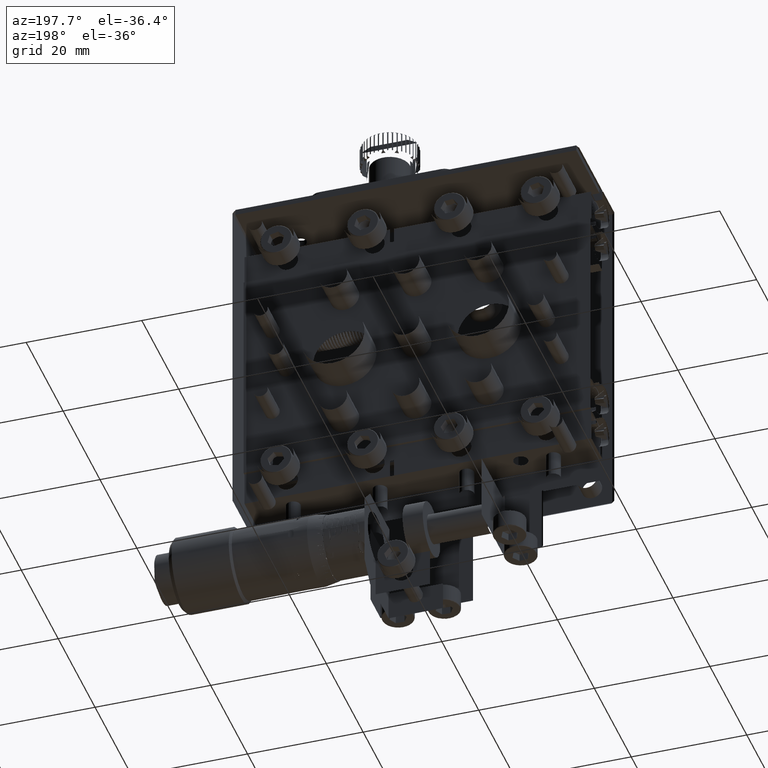
[diagram: clean part render]
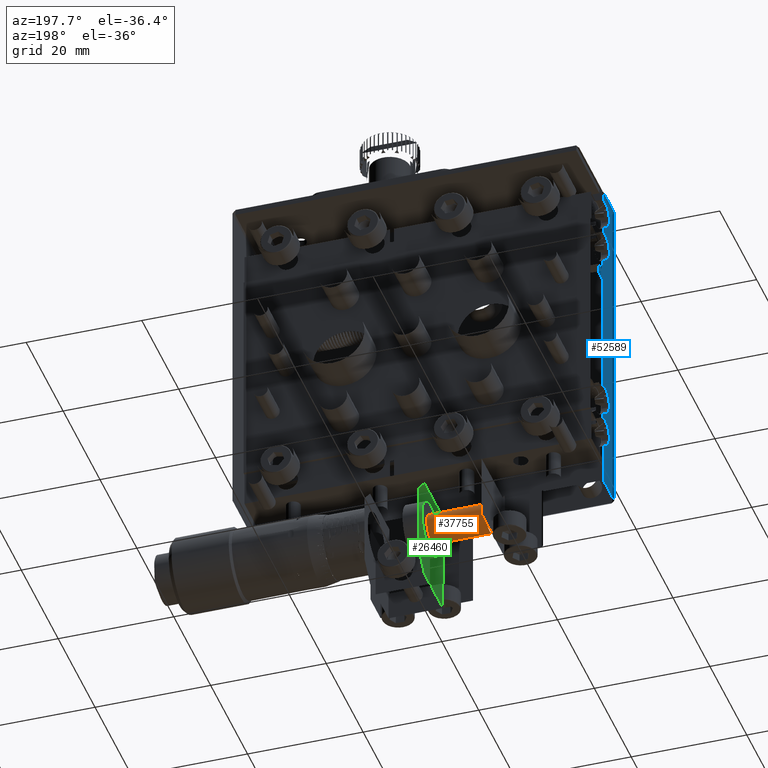
[diagram: same view with three faces highlighted in distinct colors, each labeled with its STEP entity id]
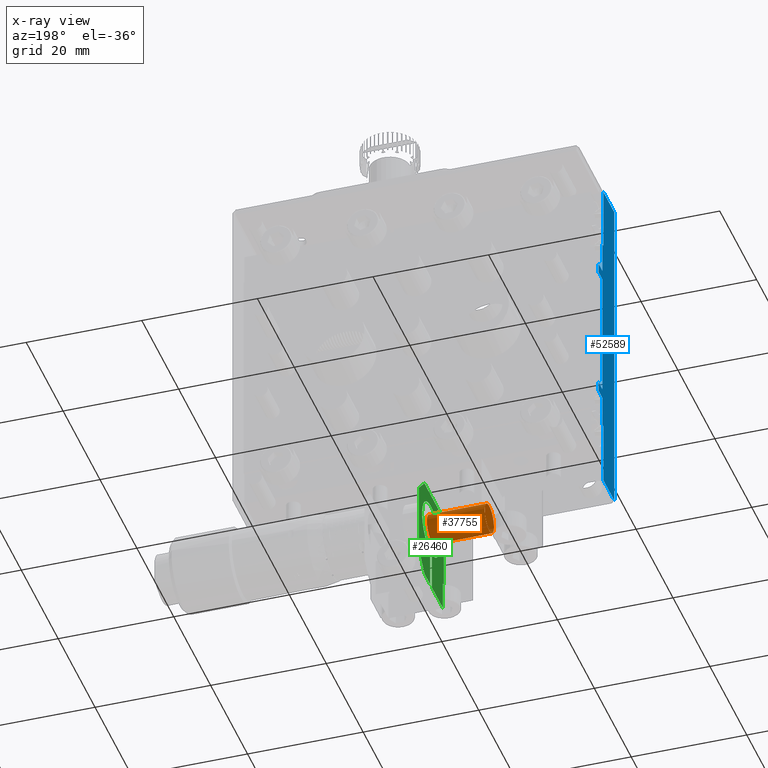
[diagram: x-ray of the same camera — body ghosted, the three highlighted faces saturated]
A machine part, auxiliary view with three faces highlighted in distinct colors.
The next image is the same camera in x-ray (body ghosted, the three faces saturated) — at least one of them is partly hidden behind the body in this view.
Their STEP definitions:

[orange] entity #37755 — the highlighted cylindrical surface (bore or boss wall) has radius 2.5 mm, axis along (1, 0, 0).
#2140 = EDGE_LOOP ( 'NONE', ( #70736 ) ) ;
#3065 = FACE_OUTER_BOUND ( 'NONE', #62259, .T. ) ;
#4983 = DIRECTION ( 'NONE',  ( -1.000000000000000000, -0.000000000000000000, -0.000000000000000000 ) ) ;
#8709 = FACE_OUTER_BOUND ( 'NONE', #2140, .T. ) ;
#12666 = EDGE_CURVE ( 'NONE', #76105, #76105, #24561, .T. ) ;
#13201 = DIRECTION ( 'NONE',  ( 0.000000000000000000, 0.000000000000000000, -1.000000000000000000 ) ) ;
#14354 = VERTEX_POINT ( 'NONE', #20855 ) ;
#16613 = CARTESIAN_POINT ( 'NONE',  ( -12.37249938987502951, 13.00000000000000888, -40.50000087875145738 ) ) ;
#20855 = CARTESIAN_POINT ( 'NONE',  ( -2.350000000000011635, 13.00000000000000888, -40.50000087875145738 ) ) ;
#20869 = CYLINDRICAL_SURFACE ( 'NONE', #76605, 2.500000878751441835 ) ;
#24561 = CIRCLE ( 'NONE', #53636, 2.500000878751441835 ) ;
#29851 = ORIENTED_EDGE ( 'NONE', *, *, #12666, .T. ) ;
#37755 = ADVANCED_FACE ( 'NONE', ( #8709, #3065 ), #20869, .T. ) ;
#47323 = DIRECTION ( 'NONE',  ( 1.000000000000000000, 0.000000000000000000, 0.000000000000000000 ) ) ;
#48300 = EDGE_CURVE ( 'NONE', #14354, #14354, #70465, .T. ) ;
#51050 = AXIS2_PLACEMENT_3D ( 'NONE', #64863, #4983, #13201 ) ;
#52211 = CARTESIAN_POINT ( 'NONE',  ( -12.37249938987502951, 13.00000000000000888, -38.00000000000001421 ) ) ;
#53636 = AXIS2_PLACEMENT_3D ( 'NONE', #52211, #71791, #84829 ) ;
#55151 = DIRECTION ( 'NONE',  ( 0.000000000000000000, 0.000000000000000000, -1.000000000000000000 ) ) ;
#62259 = EDGE_LOOP ( 'NONE', ( #29851 ) ) ;
#64863 = CARTESIAN_POINT ( 'NONE',  ( -2.350000000000011635, 13.00000000000000888, -38.00000000000001421 ) ) ;
#70465 = CIRCLE ( 'NONE', #51050, 2.500000878751441835 ) ;
#70736 = ORIENTED_EDGE ( 'NONE', *, *, #48300, .T. ) ;
#71791 = DIRECTION ( 'NONE',  ( 1.000000000000000000, 0.000000000000000000, 0.000000000000000000 ) ) ;
#76105 = VERTEX_POINT ( 'NONE', #16613 ) ;
#76605 = AXIS2_PLACEMENT_3D ( 'NONE', #80796, #47323, #55151 ) ;
#80796 = CARTESIAN_POINT ( 'NONE',  ( 45.25000000000000000, 13.00000000000000888, -38.00000000000001421 ) ) ;
#84829 = DIRECTION ( 'NONE',  ( 0.000000000000000000, 0.000000000000000000, -1.000000000000000000 ) ) ;

[blue] entity #52589 — the highlighted planar face has unit normal (-1, 0, 0).
#171 = CARTESIAN_POINT ( 'NONE',  ( -30.00000000000000000, 8.999999999999996447, 29.99999999999998579 ) ) ;
#830 = VECTOR ( 'NONE', #8120, 1000.000000000000000 ) ;
#1524 = VERTEX_POINT ( 'NONE', #25277 ) ;
#1936 = VERTEX_POINT ( 'NONE', #25604 ) ;
#2291 = EDGE_LOOP ( 'NONE', ( #3884, #41718, #31880, #57006, #24784, #27845, #44651, #50110, #56962, #43354, #65267, #60798, #77698, #18195, #80019, #20644 ) ) ;
#2313 = VECTOR ( 'NONE', #83941, 1000.000000000000000 ) ;
#2472 = EDGE_CURVE ( 'NONE', #44679, #52233, #78485, .T. ) ;
#3013 = CARTESIAN_POINT ( 'NONE',  ( -30.00000000000000000, 8.999999999999996447, -12.99999999999999822 ) ) ;
#3534 = EDGE_CURVE ( 'NONE', #24541, #63672, #64074, .T. ) ;
#3884 = ORIENTED_EDGE ( 'NONE', *, *, #83804, .F. ) ;
#4846 = LINE ( 'NONE', #32173, #78930 ) ;
#5963 = DIRECTION ( 'NONE',  ( 0.000000000000000000, 1.000000000000000000, -0.000000000000000000 ) ) ;
#6567 = VERTEX_POINT ( 'NONE', #14536 ) ;
#6649 = DIRECTION ( 'NONE',  ( 0.000000000000000000, 6.033820786006283745E-16, -1.000000000000000000 ) ) ;
#8039 = VERTEX_POINT ( 'NONE', #41338 ) ;
#8120 = DIRECTION ( 'NONE',  ( 0.000000000000000000, 1.000000000000000000, -0.000000000000000000 ) ) ;
#8946 = CARTESIAN_POINT ( 'NONE',  ( -30.00000000000000000, 8.999999999999996447, 12.99999999999999645 ) ) ;
#9120 = CARTESIAN_POINT ( 'NONE',  ( -30.00000000000000000, 6.999999999999995559, -12.99999999999999822 ) ) ;
#9610 = CARTESIAN_POINT ( 'NONE',  ( -30.00000000000000000, 6.499999999999997335, -29.49999999999999289 ) ) ;
#10316 = VECTOR ( 'NONE', #5963, 1000.000000000000000 ) ;
#11451 = VERTEX_POINT ( 'NONE', #9610 ) ;
#11479 = CARTESIAN_POINT ( 'NONE',  ( -30.00000000000000000, 6.500000000000002665, -30.00000000000001066 ) ) ;
#11969 = DIRECTION ( 'NONE',  ( 0.000000000000000000, 1.000000000000000000, -0.000000000000000000 ) ) ;
#13208 = VERTEX_POINT ( 'NONE', #74570 ) ;
#13806 = CARTESIAN_POINT ( 'NONE',  ( -30.00000000000000000, 6.999999999999995559, 29.99999999999998579 ) ) ;
#14536 = CARTESIAN_POINT ( 'NONE',  ( -30.00000000000000000, 8.999999999999998224, -12.99999999999999822 ) ) ;
#14694 = EDGE_CURVE ( 'NONE', #26227, #63162, #38695, .T. ) ;
#15080 = CARTESIAN_POINT ( 'NONE',  ( -30.00000000000000000, 8.999999999999996447, -11.25000000000000355 ) ) ;
#15491 = VECTOR ( 'NONE', #21754, 1000.000000000000000 ) ;
#15732 = DIRECTION ( 'NONE',  ( -0.000000000000000000, -0.000000000000000000, -1.000000000000000000 ) ) ;
#16286 = VECTOR ( 'NONE', #33780, 1000.000000000000000 ) ;
#16479 = EDGE_CURVE ( 'NONE', #83164, #59109, #53728, .T. ) ;
#16522 = EDGE_CURVE ( 'NONE', #11451, #13208, #28584, .T. ) ;
#16758 = LINE ( 'NONE', #50581, #66345 ) ;
#17526 = EDGE_CURVE ( 'NONE', #33173, #8039, #4846, .T. ) ;
#18195 = ORIENTED_EDGE ( 'NONE', *, *, #18423, .F. ) ;
#18423 = EDGE_CURVE ( 'NONE', #1524, #11451, #39224, .T. ) ;
#18484 = CARTESIAN_POINT ( 'NONE',  ( -30.00000000000000000, 8.999999999999996447, 18.50000000000000000 ) ) ;
#19716 = CARTESIAN_POINT ( 'NONE',  ( -30.00000000000000000, 6.999999999999996447, 18.50000000000000000 ) ) ;
#20644 = ORIENTED_EDGE ( 'NONE', *, *, #14694, .F. ) ;
#21754 = DIRECTION ( 'NONE',  ( -0.000000000000000000, -0.000000000000000000, -1.000000000000000000 ) ) ;
#21766 = EDGE_CURVE ( 'NONE', #52233, #33173, #28708, .T. ) ;
#22250 = CARTESIAN_POINT ( 'NONE',  ( -30.00000000000000000, 6.999999999999996447, 29.99999999999998579 ) ) ;
#22774 = CARTESIAN_POINT ( 'NONE',  ( -30.00000000000000000, 0.5000000000000119904, 29.50000000000000000 ) ) ;
#24541 = VERTEX_POINT ( 'NONE', #66349 ) ;
#24784 = ORIENTED_EDGE ( 'NONE', *, *, #17526, .F. ) ;
#25277 = CARTESIAN_POINT ( 'NONE',  ( -30.00000000000000000, 6.499999999999995559, -18.50000000000000355 ) ) ;
#25604 = CARTESIAN_POINT ( 'NONE',  ( -30.00000000000000000, 6.999999999999995559, -11.25000000000000178 ) ) ;
#26227 = VERTEX_POINT ( 'NONE', #9120 ) ;
#27845 = ORIENTED_EDGE ( 'NONE', *, *, #21766, .F. ) ;
#28584 = LINE ( 'NONE', #35508, #16286 ) ;
#28708 = LINE ( 'NONE', #41270, #15491 ) ;
#29144 = EDGE_CURVE ( 'NONE', #59109, #24541, #83593, .T. ) ;
#31880 = ORIENTED_EDGE ( 'NONE', *, *, #84319, .F. ) ;
#32173 = CARTESIAN_POINT ( 'NONE',  ( -30.00000000000000000, 8.999999999999996447, 11.25000000000000355 ) ) ;
#33173 = VERTEX_POINT ( 'NONE', #35154 ) ;
#33780 = DIRECTION ( 'NONE',  ( -0.000000000000000000, -1.000000000000000000, 0.000000000000000000 ) ) ;
#35154 = CARTESIAN_POINT ( 'NONE',  ( -30.00000000000000000, 8.999999999999998224, 11.25000000000000178 ) ) ;
#35508 = CARTESIAN_POINT ( 'NONE',  ( -30.00000000000000000, 8.999999999999996447, -29.49999999999998579 ) ) ;
#35565 = DIRECTION ( 'NONE',  ( -0.000000000000000000, -1.000000000000000000, 0.000000000000000000 ) ) ;
#36221 = VERTEX_POINT ( 'NONE', #48174 ) ;
#36606 = VECTOR ( 'NONE', #50112, 1000.000000000000000 ) ;
#38695 = LINE ( 'NONE', #85160, #39934 ) ;
#38802 = VECTOR ( 'NONE', #15732, 1000.000000000000000 ) ;
#39122 = CARTESIAN_POINT ( 'NONE',  ( -30.00000000000000000, 6.999999999999995559, 13.00000000000000000 ) ) ;
#39224 = LINE ( 'NONE', #11479, #60857 ) ;
#39267 = DIRECTION ( 'NONE',  ( -0.000000000000000000, -1.000000000000000000, 0.000000000000000000 ) ) ;
#39686 = FACE_OUTER_BOUND ( 'NONE', #2291, .T. ) ;
#39692 = EDGE_CURVE ( 'NONE', #63162, #1524, #52267, .T. ) ;
#39934 = VECTOR ( 'NONE', #58216, 1000.000000000000000 ) ;
#40782 = LINE ( 'NONE', #3013, #79816 ) ;
#41270 = CARTESIAN_POINT ( 'NONE',  ( -30.00000000000000000, 8.999999999999996447, 29.99999999999998579 ) ) ;
#41338 = CARTESIAN_POINT ( 'NONE',  ( -30.00000000000000000, 6.999999999999995559, 11.25000000000000000 ) ) ;
#41718 = ORIENTED_EDGE ( 'NONE', *, *, #50466, .F. ) ;
#43354 = ORIENTED_EDGE ( 'NONE', *, *, #29144, .F. ) ;
#44464 = CARTESIAN_POINT ( 'NONE',  ( -30.00000000000000000, 6.499999999999993783, 18.50000000000000000 ) ) ;
#44651 = ORIENTED_EDGE ( 'NONE', *, *, #2472, .F. ) ;
#44679 = VERTEX_POINT ( 'NONE', #39122 ) ;
#44736 = VECTOR ( 'NONE', #47622, 1000.000000000000000 ) ;
#47622 = DIRECTION ( 'NONE',  ( -0.000000000000000000, -0.000000000000000000, -1.000000000000000000 ) ) ;
#48174 = CARTESIAN_POINT ( 'NONE',  ( -30.00000000000000000, 8.999999999999996447, -11.24999999999999822 ) ) ;
#50110 = ORIENTED_EDGE ( 'NONE', *, *, #68416, .F. ) ;
#50112 = DIRECTION ( 'NONE',  ( 0.000000000000000000, -7.542275982507857147E-17, -1.000000000000000000 ) ) ;
#50466 = EDGE_CURVE ( 'NONE', #36221, #6567, #16758, .T. ) ;
#50581 = CARTESIAN_POINT ( 'NONE',  ( -30.00000000000000000, 8.999999999999996447, 29.99999999999998579 ) ) ;
#51966 = CARTESIAN_POINT ( 'NONE',  ( -30.00000000000000000, 8.999999999999996447, 12.99999999999999822 ) ) ;
#52233 = VERTEX_POINT ( 'NONE', #8946 ) ;
#52267 = LINE ( 'NONE', #53130, #61190 ) ;
#52589 = ADVANCED_FACE ( 'NONE', ( #39686 ), #53977, .F. ) ;
#52852 = LINE ( 'NONE', #13806, #44736 ) ;
#53130 = CARTESIAN_POINT ( 'NONE',  ( -30.00000000000000000, 8.999999999999996447, -18.50000000000000355 ) ) ;
#53728 = LINE ( 'NONE', #61117, #57842 ) ;
#53977 = PLANE ( 'NONE',  #81570 ) ;
#55808 = CARTESIAN_POINT ( 'NONE',  ( -30.00000000000000000, 6.499999999999994671, 29.50000000000000000 ) ) ;
#56954 = EDGE_CURVE ( 'NONE', #83164, #13208, #70889, .T. ) ;
#56962 = ORIENTED_EDGE ( 'NONE', *, *, #3534, .F. ) ;
#57006 = ORIENTED_EDGE ( 'NONE', *, *, #71837, .F. ) ;
#57842 = VECTOR ( 'NONE', #80249, 1000.000000000000000 ) ;
#58026 = CARTESIAN_POINT ( 'NONE',  ( -30.00000000000000000, 6.999999999999995559, -18.50000000000000355 ) ) ;
#58216 = DIRECTION ( 'NONE',  ( -0.000000000000000000, -0.000000000000000000, -1.000000000000000000 ) ) ;
#59109 = VERTEX_POINT ( 'NONE', #55808 ) ;
#60798 = ORIENTED_EDGE ( 'NONE', *, *, #56954, .T. ) ;
#60857 = VECTOR ( 'NONE', #6649, 1000.000000000000000 ) ;
#61117 = CARTESIAN_POINT ( 'NONE',  ( -30.00000000000000000, 8.999999999999996447, 29.50000000000000000 ) ) ;
#61190 = VECTOR ( 'NONE', #39267, 1000.000000000000000 ) ;
#61793 = DIRECTION ( 'NONE',  ( 0.000000000000000000, 0.000000000000000000, 1.000000000000000000 ) ) ;
#63162 = VERTEX_POINT ( 'NONE', #58026 ) ;
#63672 = VERTEX_POINT ( 'NONE', #19716 ) ;
#64074 = LINE ( 'NONE', #18484, #76958 ) ;
#65267 = ORIENTED_EDGE ( 'NONE', *, *, #16479, .F. ) ;
#65580 = DIRECTION ( 'NONE',  ( -0.000000000000000000, -1.000000000000000000, 0.000000000000000000 ) ) ;
#66345 = VECTOR ( 'NONE', #77114, 1000.000000000000000 ) ;
#66349 = CARTESIAN_POINT ( 'NONE',  ( -30.00000000000000000, 6.499999999999993783, 18.50000000000000000 ) ) ;
#68316 = DIRECTION ( 'NONE',  ( -1.000000000000000000, 0.000000000000000000, 0.000000000000000000 ) ) ;
#68416 = EDGE_CURVE ( 'NONE', #63672, #44679, #75654, .T. ) ;
#68465 = LINE ( 'NONE', #15080, #830 ) ;
#70889 = LINE ( 'NONE', #84785, #2313 ) ;
#71837 = EDGE_CURVE ( 'NONE', #8039, #1936, #52852, .T. ) ;
#74570 = CARTESIAN_POINT ( 'NONE',  ( -30.00000000000000000, 0.5000000000000077716, -29.49999999999999645 ) ) ;
#75654 = LINE ( 'NONE', #22250, #38802 ) ;
#76958 = VECTOR ( 'NONE', #11969, 1000.000000000000000 ) ;
#77114 = DIRECTION ( 'NONE',  ( -0.000000000000000000, -0.000000000000000000, -1.000000000000000000 ) ) ;
#77698 = ORIENTED_EDGE ( 'NONE', *, *, #16522, .F. ) ;
#78485 = LINE ( 'NONE', #51966, #10316 ) ;
#78930 = VECTOR ( 'NONE', #65580, 1000.000000000000000 ) ;
#79816 = VECTOR ( 'NONE', #35565, 1000.000000000000000 ) ;
#80019 = ORIENTED_EDGE ( 'NONE', *, *, #39692, .F. ) ;
#80249 = DIRECTION ( 'NONE',  ( 0.000000000000000000, 1.000000000000000000, -0.000000000000000000 ) ) ;
#81570 = AXIS2_PLACEMENT_3D ( 'NONE', #171, #68316, #61793 ) ;
#83164 = VERTEX_POINT ( 'NONE', #22774 ) ;
#83593 = LINE ( 'NONE', #44464, #36606 ) ;
#83804 = EDGE_CURVE ( 'NONE', #6567, #26227, #40782, .T. ) ;
#83941 = DIRECTION ( 'NONE',  ( -1.069546691927972366E-17, -1.069546691927959424E-17, -1.000000000000000000 ) ) ;
#84319 = EDGE_CURVE ( 'NONE', #1936, #36221, #68465, .T. ) ;
#84785 = CARTESIAN_POINT ( 'NONE',  ( -30.00000000000000355, 0.5000000000000104361, 30.00000000000000000 ) ) ;
#85160 = CARTESIAN_POINT ( 'NONE',  ( -30.00000000000000000, 6.999999999999995559, 29.99999999999998579 ) ) ;

[green] entity #26460 — the highlighted planar face has unit normal (1, 0, -0).
#574 = DIRECTION ( 'NONE',  ( -8.326672684688674053E-17, 1.000000000000000000, 7.212709828240367048E-33 ) ) ;
#607 = CARTESIAN_POINT ( 'NONE',  ( -2.249999999999991118, 10.50706694995452217, -42.04846754337389569 ) ) ;
#861 = DIRECTION ( 'NONE',  ( 8.662175278611954998E-17, -0.000000000000000000, 1.000000000000000000 ) ) ;
#1468 = CARTESIAN_POINT ( 'NONE',  ( -2.249999999999991562, 8.300399172466512709, -38.90494957184331781 ) ) ;
#1703 = VECTOR ( 'NONE', #25128, 1000.000000000000000 ) ;
#1908 = CARTESIAN_POINT ( 'NONE',  ( -2.249999999999990230, 8.601712187538810284, -36.20577635481316037 ) ) ;
#2239 = LINE ( 'NONE', #35658, #17415 ) ;
#2342 = CARTESIAN_POINT ( 'NONE',  ( -2.249999999999992006, 15.45746457156184483, -33.93436263874708203 ) ) ;
#2787 = CARTESIAN_POINT ( 'NONE',  ( -2.249999999999991562, 9.845215335399185363, -34.44542924197764222 ) ) ;
#2900 = DIRECTION ( 'NONE',  ( -8.662175278611954998E-17, 0.000000000000000000, -1.000000000000000000 ) ) ;
#3211 = CARTESIAN_POINT ( 'NONE',  ( -2.249999999999991118, 8.825769665846163292, -35.72390559103932617 ) ) ;
#3633 = CARTESIAN_POINT ( 'NONE',  ( -2.249999999999992450, 17.18950692849898942, -40.23977029397181582 ) ) ;
#4181 = LINE ( 'NONE', #76709, #66679 ) ;
#4548 = CARTESIAN_POINT ( 'NONE',  ( -2.249999999999989786, 5.950000000000009059, -37.25000000000000711 ) ) ;
#4788 = EDGE_CURVE ( 'NONE', #38869, #43473, #4181, .T. ) ;
#4919 = CARTESIAN_POINT ( 'NONE',  ( -2.249999999999992006, 17.09766676555808118, -35.58878719673652569 ) ) ;
#6440 = CARTESIAN_POINT ( 'NONE',  ( -2.249999999999992895, 16.50000000000001066, -49.49999999999998579 ) ) ;
#7093 = CARTESIAN_POINT ( 'NONE',  ( -2.249999999999992450, 6.500000000000014211, -49.50000000000000000 ) ) ;
#7120 = CARTESIAN_POINT ( 'NONE',  ( -2.249999999999991562, 10.91071031651465084, -42.26599274991745858 ) ) ;
#7802 = VECTOR ( 'NONE', #66159, 999.9999999999998863 ) ;
#8415 = CARTESIAN_POINT ( 'NONE',  ( -2.249999999999992450, 8.927278650093763090, -40.44573049361311234 ) ) ;
#8689 = VERTEX_POINT ( 'NONE', #54172 ) ;
#8818 = CARTESIAN_POINT ( 'NONE',  ( -2.249999999999993339, 19.50000000000001066, -49.49999999999998579 ) ) ;
#8853 = CARTESIAN_POINT ( 'NONE',  ( -2.249999999999992006, 14.84132423736937056, -33.61865483678405297 ) ) ;
#9287 = CARTESIAN_POINT ( 'NONE',  ( -2.249999999999990674, 10.21393578593469798, -34.15203732895611921 ) ) ;
#9369 = CARTESIAN_POINT ( 'NONE',  ( -2.249999999999992006, 16.50000000000000000, -30.99999999999999289 ) ) ;
#9621 = DIRECTION ( 'NONE',  ( -8.326672684688674053E-17, 1.000000000000000000, 7.212709828240367048E-33 ) ) ;
#9728 = CARTESIAN_POINT ( 'NONE',  ( -2.249999999999991562, 8.721791001067421334, -35.93031689676391238 ) ) ;
#10084 = CARTESIAN_POINT ( 'NONE',  ( -2.249999999999992006, 6.500000000000013323, -44.50000000000000000 ) ) ;
#10157 = CARTESIAN_POINT ( 'NONE',  ( -2.249999999999992006, 17.33347566899823278, -36.05480563902283819 ) ) ;
#10578 = CARTESIAN_POINT ( 'NONE',  ( -2.249999999999992450, 16.34977484057104746, -41.37424566757694322 ) ) ;
#10771 = EDGE_CURVE ( 'NONE', #23258, #52266, #66581, .T. ) ;
#11256 = EDGE_LOOP ( 'NONE', ( #74332, #48504, #54695, #85381, #46150, #53005, #38154, #83137, #41382, #22235, #17711, #80041 ) ) ;
#11858 = CARTESIAN_POINT ( 'NONE',  ( -2.249999999999992006, 15.27468047936497086, -42.17023594582656187 ) ) ;
#12939 = AXIS2_PLACEMENT_3D ( 'NONE', #57680, #78120, #51171 ) ;
#13655 = CARTESIAN_POINT ( 'NONE',  ( -2.249999999999992006, 11.78444696837527061, -42.60846245820587086 ) ) ;
#14511 = CARTESIAN_POINT ( 'NONE',  ( -2.249999999999991562, 11.07525053316114949, -42.34375040561102566 ) ) ;
#14941 = CARTESIAN_POINT ( 'NONE',  ( -2.249999999999991118, 8.523504173982022536, -39.58934710219258335 ) ) ;
#15040 = EDGE_CURVE ( 'NONE', #20982, #26162, #19899, .T. ) ;
#15379 = CARTESIAN_POINT ( 'NONE',  ( -2.249999999999991118, 10.80810529498120331, -33.78094587540476823 ) ) ;
#15431 = EDGE_CURVE ( 'NONE', #61454, #19002, #84855, .T. ) ;
#15813 = CARTESIAN_POINT ( 'NONE',  ( -2.249999999999991562, 16.69577547530979444, -35.01500181596125572 ) ) ;
#16231 = CARTESIAN_POINT ( 'NONE',  ( -2.249999999999991562, 14.66097370556406965, -33.54970987493486945 ) ) ;
#16370 = VECTOR ( 'NONE', #574, 1000.000000000000000 ) ;
#16670 = CARTESIAN_POINT ( 'NONE',  ( -2.249999999999991562, 15.39195772806027129, -33.89549598074378878 ) ) ;
#17090 = CARTESIAN_POINT ( 'NONE',  ( -2.249999999999992006, 16.97404250002067982, -35.39353324748434915 ) ) ;
#17415 = VECTOR ( 'NONE', #9621, 1000.000000000000000 ) ;
#17711 = ORIENTED_EDGE ( 'NONE', *, *, #10771, .T. ) ;
#18372 = CARTESIAN_POINT ( 'NONE',  ( -2.249999999999992895, 17.59276122965317057, -39.21632281126225195 ) ) ;
#19002 = VERTEX_POINT ( 'NONE', #81209 ) ;
#19899 = LINE ( 'NONE', #6440, #74606 ) ;
#20982 = VERTEX_POINT ( 'NONE', #78780 ) ;
#21454 = CARTESIAN_POINT ( 'NONE',  ( -2.249999999999992006, 8.485842080957329614, -39.47823230844145570 ) ) ;
#21888 = CARTESIAN_POINT ( 'NONE',  ( -2.249999999999991562, 14.62859055976294798, -33.53776687176016935 ) ) ;
#22235 = ORIENTED_EDGE ( 'NONE', *, *, #43609, .T. ) ;
#22327 = CARTESIAN_POINT ( 'NONE',  ( -2.249999999999991118, 8.643436519040450960, -36.10678303298471548 ) ) ;
#22519 = DIRECTION ( 'NONE',  ( 0.000000000000000000, -4.975883423730065764E-16, 1.000000000000000000 ) ) ;
#22762 = CARTESIAN_POINT ( 'NONE',  ( -2.249999999999992006, 11.26678307184056571, -33.57747063684256972 ) ) ;
#23182 = CARTESIAN_POINT ( 'NONE',  ( -2.249999999999991118, 11.17692891796273180, -33.61349217241624387 ) ) ;
#23258 = VERTEX_POINT ( 'NONE', #30436 ) ;
#23605 = CARTESIAN_POINT ( 'NONE',  ( -2.249999999999992895, 16.81806455207422957, -40.84314861424426368 ) ) ;
#24033 = CARTESIAN_POINT ( 'NONE',  ( -2.249999999999992895, 17.75885940654235640, -38.04140213564081563 ) ) ;
#24284 = FACE_OUTER_BOUND ( 'NONE', #11256, .T. ) ;
#24454 = CARTESIAN_POINT ( 'NONE',  ( -2.249999999999992450, 17.29326396115598641, -40.03386041782318472 ) ) ;
#24885 = CARTESIAN_POINT ( 'NONE',  ( -2.249999999999991562, 16.17563466200731881, -41.53331501795241820 ) ) ;
#25128 = DIRECTION ( 'NONE',  ( 8.662175278611954998E-17, -0.000000000000000000, 1.000000000000000000 ) ) ;
#25976 = VECTOR ( 'NONE', #22519, 1000.000000000000000 ) ;
#26162 = VERTEX_POINT ( 'NONE', #40806 ) ;
#26460 = ADVANCED_FACE ( 'NONE', ( #24284 ), #50739, .T. ) ;
#27098 = CARTESIAN_POINT ( 'NONE',  ( -2.249999999999991118, 10.31522052249126453, -41.91926814555945668 ) ) ;
#27958 = CARTESIAN_POINT ( 'NONE',  ( -2.249999999999990230, 8.629803366787751173, -36.13849171660013582 ) ) ;
#28405 = CARTESIAN_POINT ( 'NONE',  ( -2.249999999999991562, 8.492268451541933771, -39.49771932453327139 ) ) ;
#28847 = CARTESIAN_POINT ( 'NONE',  ( -2.249999999999991562, 10.02401891815254409, -34.29189240876507228 ) ) ;
#29277 = CARTESIAN_POINT ( 'NONE',  ( -2.249999999999992006, 9.818435008379374551, -41.54119617639332063 ) ) ;
#29702 = CARTESIAN_POINT ( 'NONE',  ( -2.249999999999991118, 12.41568104848742493, -33.25012627890333050 ) ) ;
#30436 = CARTESIAN_POINT ( 'NONE',  ( -2.249999999999992895, 19.50000000000000711, -33.99999999999998579 ) ) ;
#30544 = CARTESIAN_POINT ( 'NONE',  ( -2.249999999999992450, 17.56271833796292015, -39.32127799444925387 ) ) ;
#31402 = CARTESIAN_POINT ( 'NONE',  ( -2.249999999999992006, 17.28432651736078540, -35.94827258529482350 ) ) ;
#31655 = DIRECTION ( 'NONE',  ( 0.000000000000000000, 0.7071067811865479058, 0.7071067811865470176 ) ) ;
#31763 = VECTOR ( 'NONE', #861, 1000.000000000000000 ) ;
#33435 = CARTESIAN_POINT ( 'NONE',  ( -2.249999999999991562, 19.50000000000001776, -30.99999999999999289 ) ) ;
#33599 = CARTESIAN_POINT ( 'NONE',  ( -2.249999999999991118, 10.87980240534491649, -42.25072676224476709 ) ) ;
#34357 = CARTESIAN_POINT ( 'NONE',  ( -2.249999999999991562, 19.50000000000001066, -30.99999999999999289 ) ) ;
#34463 = CARTESIAN_POINT ( 'NONE',  ( -2.249999999999991562, 8.773670763380714277, -40.17366600645342345 ) ) ;
#34770 = CARTESIAN_POINT ( 'NONE',  ( -2.249999999999993339, 19.50000000000001066, -49.50000000000000000 ) ) ;
#34796 = EDGE_CURVE ( 'NONE', #72020, #8689, #84637, .T. ) ;
#34892 = CARTESIAN_POINT ( 'NONE',  ( -2.249999999999991118, 10.41039935049215082, -34.01725413278530397 ) ) ;
#34924 = B_SPLINE_CURVE_WITH_KNOTS ( 'NONE', 3,
 ( #79653, #73132, #13655, #40119, #14511, #66588, #7120, #33599, #40973, #607, #27098, #80067, #74424, #29277, #36196, #62673, #48344, #69615, #8415, #49621, #34463, #74870, #60945, #14941, #55722, #28405, #21454, #1468, #55300, #62252, #82248, #41403, #82675, #1908, #27958, #22327, #9728, #3211, #47900, #54426, #41833, #80937, #69193, #2787, #28847, #9287, #67898, #34892, #61375, #15379, #68333, #23182, #42690, #22762, #49205, #76162, #29702, #54864, #81370, #35333, #75733, #68757, #21888, #16231, #8853, #61809, #56148, #16670, #2342, #43118, #81816, #48774, #75304, #15813, #42263, #35758, #17090, #4919, #51346, #31402, #70041, #83531, #10157, #77869, #77451, #24033, #57850, #83097, #18372, #30544, #37044, #57425, #50485, #36622, #24454, #63528, #3633, #84382, #23605, #70477, #10578, #24885, #50053, #63100, #76588, #43544, #44829, #11858, #38330, #77022, #45249, #71340, #56561, #64384 ),
 .UNSPECIFIED., .F., .F.,
 ( 4, 1, 1, 1, 2, 2, 1, 2, 2, 2, 1, 2, 2, 1, 1, 1, 2, 2, 2, 1, 1, 1, 2, 2, 1, 2, 2, 2, 1, 2, 2, 1, 1, 1, 2, 2, 2, 1, 1, 1, 2, 2, 1, 2, 2, 2, 1, 2, 2, 1, 1, 1, 2, 2, 2, 1, 1, 1, 2, 2, 1, 2, 2, 2, 1, 2, 2, 1, 1, 1, 2, 2, 4 ),
 ( 0.000000000000000000, 0.03124999999999786282, 0.04687499999999659994, 0.05468749999999610728, 0.05859374999999578115, 0.06249999999999544809, 0.07812499999999460154, 0.08593749999999428235, 0.09374999999999397704, 0.1249999999999920619, 0.1406249999999910349, 0.1484374999999905353, 0.1562499999999900357, 0.1718749999999896194, 0.1796874999999890643, 0.1835937499999884814, 0.1855468749999884814, 0.1874999999999884814, 0.2499999999999848455, 0.2812499999999829581, 0.2968749999999824030, 0.3046874999999821254, 0.3085937499999820144, 0.3124999999999819034, 0.3281249999999815703, 0.3359374999999814038, 0.3437499999999812372, 0.3749999999999795164, 0.3906249999999786282, 0.3984374999999783507, 0.4062499999999780731, 0.4218749999999781286, 0.4296874999999782951, 0.4335937499999784062, 0.4355468749999783507, 0.4374999999999783507, 0.4999999999999815703, 0.5312499999999831246, 0.5468749999999837907, 0.5546874999999841238, 0.5585937499999844569, 0.5624999999999846789, 0.5781249999999855671, 0.5859374999999859002, 0.5937499999999862332, 0.6249999999999878986, 0.6406249999999884537, 0.6484374999999888978, 0.6562499999999892308, 0.6718749999999900080, 0.6796874999999906741, 0.6835937499999911182, 0.6855468749999915623, 0.6874999999999918954, 0.7500000000000000000, 0.7812500000000044409, 0.7968750000000065503, 0.8046875000000073275, 0.8085937500000074385, 0.8125000000000074385, 0.8281250000000071054, 0.8359375000000068834, 0.8437500000000066613, 0.8750000000000045519, 0.8906250000000037748, 0.8984375000000032196, 0.9062500000000025535, 0.9218750000000007772, 0.9296875000000000000, 0.9335937499999994449, 0.9355468749999992228, 0.9374999999999988898, 1.000000000000000000 ),
 .UNSPECIFIED. ) ;
#35333 = CARTESIAN_POINT ( 'NONE',  ( -2.249999999999991562, 14.21430367818559048, -33.40340094992096454 ) ) ;
#35658 = CARTESIAN_POINT ( 'NONE',  ( -2.249999999999992895, 19.50000000000001066, -44.50000000000000711 ) ) ;
#35758 = CARTESIAN_POINT ( 'NONE',  ( -2.249999999999992006, 16.84072592007095892, -35.20408859696424742 ) ) ;
#36085 = VECTOR ( 'NONE', #60835, 1000.000000000000000 ) ;
#36196 = CARTESIAN_POINT ( 'NONE',  ( -2.249999999999991562, 9.590894421307304185, -41.32251563124742688 ) ) ;
#36384 = CARTESIAN_POINT ( 'NONE',  ( -2.249999999999992450, 6.500000000000015099, -49.50000000000000000 ) ) ;
#36622 = CARTESIAN_POINT ( 'NONE',  ( -2.249999999999992895, 17.39062887134433666, -39.82405667542979444 ) ) ;
#37044 = CARTESIAN_POINT ( 'NONE',  ( -2.249999999999992006, 17.54186581552428947, -39.39114579246080439 ) ) ;
#38154 = ORIENTED_EDGE ( 'NONE', *, *, #4788, .T. ) ;
#38330 = CARTESIAN_POINT ( 'NONE',  ( -2.249999999999991562, 15.22342145529772672, -42.19752094643381213 ) ) ;
#38869 = VERTEX_POINT ( 'NONE', #62219 ) ;
#40119 = CARTESIAN_POINT ( 'NONE',  ( -2.249999999999991562, 11.30838312412462443, -42.44313552247923127 ) ) ;
#40806 = CARTESIAN_POINT ( 'NONE',  ( -2.249999999999992895, 19.50000000000001776, -46.49999999999999289 ) ) ;
#40973 = CARTESIAN_POINT ( 'NONE',  ( -2.249999999999992006, 10.70771119348149902, -42.16318056471858711 ) ) ;
#41382 = ORIENTED_EDGE ( 'NONE', *, *, #15040, .T. ) ;
#41403 = CARTESIAN_POINT ( 'NONE',  ( -2.249999999999990230, 8.473789275188538639, -36.54512106186370346 ) ) ;
#41726 = EDGE_CURVE ( 'NONE', #8689, #38869, #34924, .T. ) ;
#41833 = CARTESIAN_POINT ( 'NONE',  ( -2.249999999999991118, 9.069533584187480457, -35.33167224129581996 ) ) ;
#42263 = CARTESIAN_POINT ( 'NONE',  ( -2.249999999999991562, 16.79264962997780941, -35.13914949261904752 ) ) ;
#42690 = CARTESIAN_POINT ( 'NONE',  ( -2.249999999999990674, 11.23077528037973849, -33.59175443830308438 ) ) ;
#43118 = CARTESIAN_POINT ( 'NONE',  ( -2.249999999999991562, 15.79113200153414809, -34.14357570985996659 ) ) ;
#43473 = VERTEX_POINT ( 'NONE', #58212 ) ;
#43544 = CARTESIAN_POINT ( 'NONE',  ( -2.249999999999992006, 15.62382833804515592, -41.96488902699479695 ) ) ;
#43609 = EDGE_CURVE ( 'NONE', #26162, #23258, #66424, .T. ) ;
#44829 = CARTESIAN_POINT ( 'NONE',  ( -2.249999999999992006, 15.39290411031370276, -42.10452067089805439 ) ) ;
#45249 = CARTESIAN_POINT ( 'NONE',  ( -2.249999999999992006, 15.17089576931946482, -42.22492655798237138 ) ) ;
#46150 = ORIENTED_EDGE ( 'NONE', *, *, #34796, .T. ) ;
#47900 = CARTESIAN_POINT ( 'NONE',  ( -2.249999999999991118, 8.944678260144467430, -35.52551637192527068 ) ) ;
#48344 = CARTESIAN_POINT ( 'NONE',  ( -2.249999999999992006, 9.140197597879273772, -40.77640968235142083 ) ) ;
#48430 = EDGE_CURVE ( 'NONE', #43473, #20982, #81335, .T. ) ;
#48504 = ORIENTED_EDGE ( 'NONE', *, *, #82278, .T. ) ;
#48774 = CARTESIAN_POINT ( 'NONE',  ( -2.249999999999991562, 16.38335798834763679, -34.66225700862509029 ) ) ;
#49079 = DIRECTION ( 'NONE',  ( -8.326672684688674053E-17, 1.000000000000000000, 7.212709828240367048E-33 ) ) ;
#49205 = CARTESIAN_POINT ( 'NONE',  ( -2.249999999999990674, 11.28590430281903068, -33.57002613814896819 ) ) ;
#49621 = CARTESIAN_POINT ( 'NONE',  ( -2.249999999999991562, 8.886305147776845104, -40.37609150277045700 ) ) ;
#50053 = CARTESIAN_POINT ( 'NONE',  ( -2.249999999999991562, 16.05676526992954933, -41.63659771296136825 ) ) ;
#50317 = CARTESIAN_POINT ( 'NONE',  ( -2.249999999999991118, 12.50000000000001776, -30.99999999999999289 ) ) ;
#50485 = CARTESIAN_POINT ( 'NONE',  ( -2.249999999999992450, 17.47230236653991398, -39.60784698544468796 ) ) ;
#50739 = PLANE ( 'NONE',  #12939 ) ;
#51171 = DIRECTION ( 'NONE',  ( -8.662175278611954998E-17, 0.000000000000000000, -1.000000000000000000 ) ) ;
#51346 = CARTESIAN_POINT ( 'NONE',  ( -2.249999999999991562, 17.22493352513014742, -35.82674974364519471 ) ) ;
#51369 = VERTEX_POINT ( 'NONE', #7093 ) ;
#52266 = VERTEX_POINT ( 'NONE', #9369 ) ;
#53005 = ORIENTED_EDGE ( 'NONE', *, *, #41726, .T. ) ;
#54172 = CARTESIAN_POINT ( 'NONE',  ( -2.249999999999992895, 12.50000000000001243, -42.72361090692279362 ) ) ;
#54426 = CARTESIAN_POINT ( 'NONE',  ( -2.249999999999991562, 9.027268418458799459, -35.39503957842935478 ) ) ;
#54695 = ORIENTED_EDGE ( 'NONE', *, *, #58578, .F. ) ;
#54864 = CARTESIAN_POINT ( 'NONE',  ( -2.249999999999992450, 13.29215947575687018, -33.24993686054833830 ) ) ;
#55300 = CARTESIAN_POINT ( 'NONE',  ( -2.249999999999992006, 8.225931532589918049, -38.33316553227412982 ) ) ;
#55722 = CARTESIAN_POINT ( 'NONE',  ( -2.249999999999991562, 8.504634615856270230, -39.53442989535913199 ) ) ;
#56148 = CARTESIAN_POINT ( 'NONE',  ( -2.249999999999991118, 15.25730937937460219, -33.81989736906721333 ) ) ;
#56328 = LINE ( 'NONE', #36384, #25976 ) ;
#56561 = CARTESIAN_POINT ( 'NONE',  ( -2.249999999999992006, 14.08211939134445956, -42.66199285636624694 ) ) ;
#57425 = CARTESIAN_POINT ( 'NONE',  ( -2.249999999999992450, 17.53164615976248086, -39.42411338401724663 ) ) ;
#57680 = CARTESIAN_POINT ( 'NONE',  ( -2.249999999999991562, 19.50000000000001066, -30.99999999999999289 ) ) ;
#57850 = CARTESIAN_POINT ( 'NONE',  ( -2.249999999999992895, 17.74250276506779755, -38.47411570663997793 ) ) ;
#58212 = CARTESIAN_POINT ( 'NONE',  ( -2.249999999999993339, 13.50000000000001243, -49.49999999999998579 ) ) ;
#58578 = EDGE_CURVE ( 'NONE', #51369, #73521, #56328, .T. ) ;
#60835 = DIRECTION ( 'NONE',  ( 8.326672684688674053E-17, -1.000000000000000000, -7.212709828240367048E-33 ) ) ;
#60945 = CARTESIAN_POINT ( 'NONE',  ( -2.249999999999991562, 8.569775324521874182, -39.71644670563343738 ) ) ;
#61375 = CARTESIAN_POINT ( 'NONE',  ( -2.249999999999991118, 10.60660712634891567, -33.89410749333702455 ) ) ;
#61454 = VERTEX_POINT ( 'NONE', #77559 ) ;
#61809 = CARTESIAN_POINT ( 'NONE',  ( -2.249999999999992006, 15.05292883715644869, -33.71161011210168823 ) ) ;
#62219 = CARTESIAN_POINT ( 'NONE',  ( -2.249999999999992450, 13.50000000000001243, -42.72361090692279362 ) ) ;
#62252 = CARTESIAN_POINT ( 'NONE',  ( -2.249999999999990674, 8.271937025383296671, -37.45789530889479124 ) ) ;
#62673 = CARTESIAN_POINT ( 'NONE',  ( -2.249999999999991118, 9.284097222832834007, -40.96305688511328214 ) ) ;
#63100 = CARTESIAN_POINT ( 'NONE',  ( -2.249999999999992006, 15.99445028654022671, -41.68802977894903705 ) ) ;
#63528 = CARTESIAN_POINT ( 'NONE',  ( -2.249999999999993339, 17.22486703992093027, -40.17230603550951429 ) ) ;
#64223 = EDGE_CURVE ( 'NONE', #51369, #72020, #68636, .T. ) ;
#64384 = CARTESIAN_POINT ( 'NONE',  ( -2.249999999999992450, 13.50000000000001243, -42.72361090692279362 ) ) ;
#66159 = DIRECTION ( 'NONE',  ( 2.044391222244498358E-16, -0.7071067811865489050, 0.7071067811865462405 ) ) ;
#66424 = LINE ( 'NONE', #33435, #31763 ) ;
#66581 = LINE ( 'NONE', #73550, #7802 ) ;
#66588 = CARTESIAN_POINT ( 'NONE',  ( -2.249999999999992450, 10.97638642228291239, -42.29757357359503089 ) ) ;
#66679 = VECTOR ( 'NONE', #2900, 1000.000000000000000 ) ;
#67789 = LINE ( 'NONE', #34357, #36085 ) ;
#67898 = CARTESIAN_POINT ( 'NONE',  ( -2.249999999999991562, 10.34301665001808956, -34.06184099872873361 ) ) ;
#68333 = CARTESIAN_POINT ( 'NONE',  ( -2.249999999999991118, 11.05244467907603401, -33.66639777547025858 ) ) ;
#68636 = LINE ( 'NONE', #34770, #78986 ) ;
#68757 = CARTESIAN_POINT ( 'NONE',  ( -2.249999999999992006, 14.55991889727806488, -33.51326096099694496 ) ) ;
#69193 = CARTESIAN_POINT ( 'NONE',  ( -2.249999999999990674, 9.502425883264191242, -34.77074524627422392 ) ) ;
#69503 = EDGE_CURVE ( 'NONE', #52266, #61454, #67789, .T. ) ;
#69615 = CARTESIAN_POINT ( 'NONE',  ( -2.249999999999991562, 9.010546434351235590, -40.57938573504740276 ) ) ;
#70041 = CARTESIAN_POINT ( 'NONE',  ( -2.249999999999992006, 17.30887200241205548, -36.00089842490077530 ) ) ;
#70477 = CARTESIAN_POINT ( 'NONE',  ( -2.249999999999992450, 16.51142329047601010, -41.20274039361540730 ) ) ;
#71340 = CARTESIAN_POINT ( 'NONE',  ( -2.249999999999992006, 14.63365800368699610, -42.49852839497186352 ) ) ;
#71873 = VECTOR ( 'NONE', #77506, 1000.000000000000000 ) ;
#72020 = VERTEX_POINT ( 'NONE', #81959 ) ;
#73132 = CARTESIAN_POINT ( 'NONE',  ( -2.249999999999992450, 12.20929939885928661, -42.69283989224050657 ) ) ;
#73521 = VERTEX_POINT ( 'NONE', #10084 ) ;
#73550 = CARTESIAN_POINT ( 'NONE',  ( -2.249999999999992006, 19.50000000000000711, -33.99999999999998579 ) ) ;
#74332 = ORIENTED_EDGE ( 'NONE', *, *, #15431, .T. ) ;
#74424 = CARTESIAN_POINT ( 'NONE',  ( -2.249999999999991562, 10.12822628753129095, -41.78436983103682678 ) ) ;
#74606 = VECTOR ( 'NONE', #31655, 1000.000000000000114 ) ;
#74870 = CARTESIAN_POINT ( 'NONE',  ( -2.249999999999992450, 8.671286351920604929, -39.96648372916624226 ) ) ;
#75304 = CARTESIAN_POINT ( 'NONE',  ( -2.249999999999992006, 16.54610523871614802, -34.83271994550199935 ) ) ;
#75733 = CARTESIAN_POINT ( 'NONE',  ( -2.249999999999991118, 14.45669299322801926, -33.47772817963340941 ) ) ;
#76162 = CARTESIAN_POINT ( 'NONE',  ( -2.249999999999990674, 11.84861651628673407, -33.35462620027887937 ) ) ;
#76588 = CARTESIAN_POINT ( 'NONE',  ( -2.249999999999991118, 15.81229533181612013, -41.83114574242691930 ) ) ;
#76709 = CARTESIAN_POINT ( 'NONE',  ( -2.249999999999991118, 13.50000000000001243, -30.99999999999999289 ) ) ;
#77022 = CARTESIAN_POINT ( 'NONE',  ( -2.249999999999992895, 15.18911727177275850, -42.21551568269470067 ) ) ;
#77451 = CARTESIAN_POINT ( 'NONE',  ( -2.249999999999992006, 17.71247560355896056, -37.16615187878441162 ) ) ;
#77506 = DIRECTION ( 'NONE',  ( -0.000000000000000000, 4.975883423730065764E-16, -1.000000000000000000 ) ) ;
#77559 = CARTESIAN_POINT ( 'NONE',  ( -2.249999999999989786, 5.950000000000006395, -30.99999999999999645 ) ) ;
#77869 = CARTESIAN_POINT ( 'NONE',  ( -2.249999999999992450, 17.57823388235534878, -36.60538314073178157 ) ) ;
#78120 = DIRECTION ( 'NONE',  ( 1.000000000000000000, 8.326672684688674053E-17, -8.662175278611954998E-17 ) ) ;
#78780 = CARTESIAN_POINT ( 'NONE',  ( -2.249999999999992895, 16.50000000000000711, -49.49999999999998579 ) ) ;
#78986 = VECTOR ( 'NONE', #49079, 1000.000000000000000 ) ;
#79653 = CARTESIAN_POINT ( 'NONE',  ( -2.249999999999992895, 12.50000000000001243, -42.72361090692279362 ) ) ;
#80041 = ORIENTED_EDGE ( 'NONE', *, *, #69503, .T. ) ;
#80067 = CARTESIAN_POINT ( 'NONE',  ( -2.249999999999991562, 10.18927797441879690, -41.82991601891207978 ) ) ;
#80937 = CARTESIAN_POINT ( 'NONE',  ( -2.249999999999991118, 9.296041762981662515, -35.00949510383482988 ) ) ;
#81209 = CARTESIAN_POINT ( 'NONE',  ( -2.249999999999991118, 5.950000000000009059, -44.50000000000000711 ) ) ;
#81335 = LINE ( 'NONE', #8818, #16370 ) ;
#81370 = CARTESIAN_POINT ( 'NONE',  ( -2.249999999999991118, 13.72340955906481774, -33.28907686437268865 ) ) ;
#81816 = CARTESIAN_POINT ( 'NONE',  ( -2.249999999999991562, 16.04042746924411134, -34.33708971298105439 ) ) ;
#81959 = CARTESIAN_POINT ( 'NONE',  ( -2.249999999999993339, 12.50000000000001776, -49.50000000000000711 ) ) ;
#82248 = CARTESIAN_POINT ( 'NONE',  ( -2.249999999999991562, 8.333751592872522096, -37.02930747251487986 ) ) ;
#82278 = EDGE_CURVE ( 'NONE', #19002, #73521, #2239, .T. ) ;
#82675 = CARTESIAN_POINT ( 'NONE',  ( -2.249999999999991562, 8.560788288074533625, -36.30698603948611947 ) ) ;
#83097 = CARTESIAN_POINT ( 'NONE',  ( -2.249999999999992450, 17.65421006648986335, -38.97035298063828890 ) ) ;
#83137 = ORIENTED_EDGE ( 'NONE', *, *, #48430, .T. ) ;
#83531 = CARTESIAN_POINT ( 'NONE',  ( -2.249999999999992450, 17.32503373589597828, -36.03610334502834434 ) ) ;
#84382 = CARTESIAN_POINT ( 'NONE',  ( -2.249999999999993339, 16.99817052111212234, -40.58400051077239112 ) ) ;
#84637 = LINE ( 'NONE', #50317, #1703 ) ;
#84855 = LINE ( 'NONE', #4548, #71873 ) ;
#85381 = ORIENTED_EDGE ( 'NONE', *, *, #64223, .T. ) ;